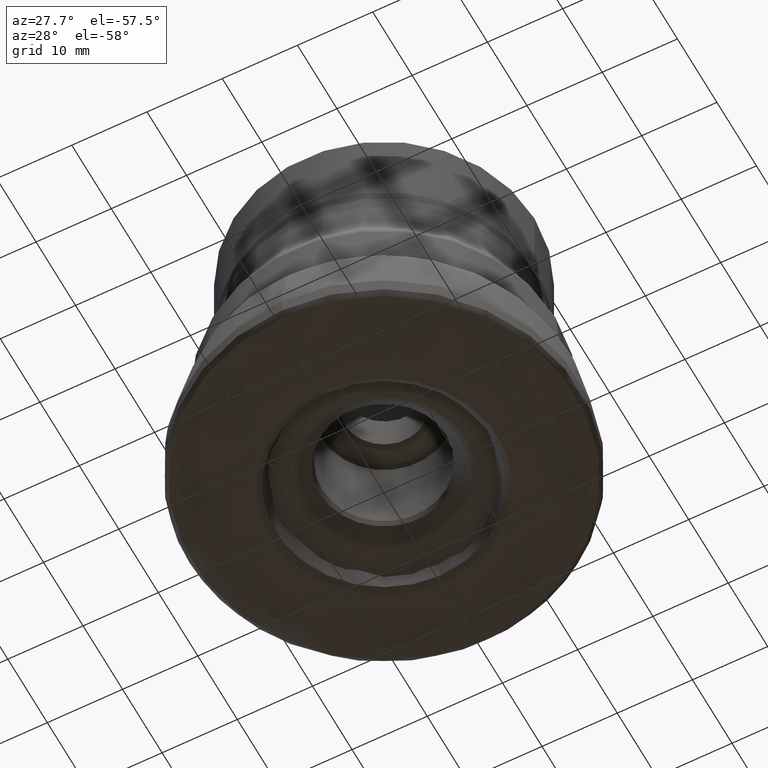
[diagram: clean part render]
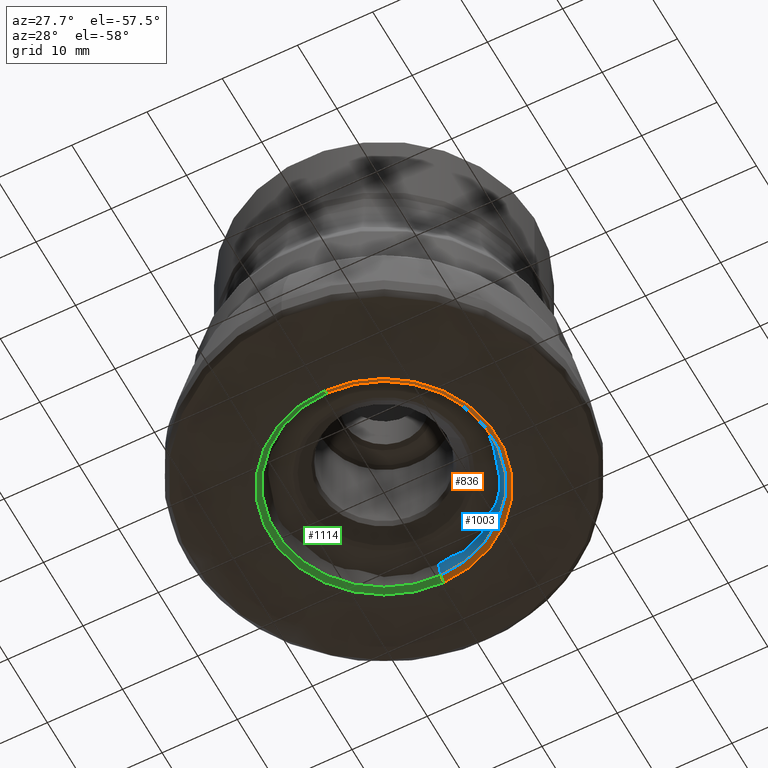
[diagram: same view with three faces highlighted in distinct colors, each labeled with its STEP entity id]
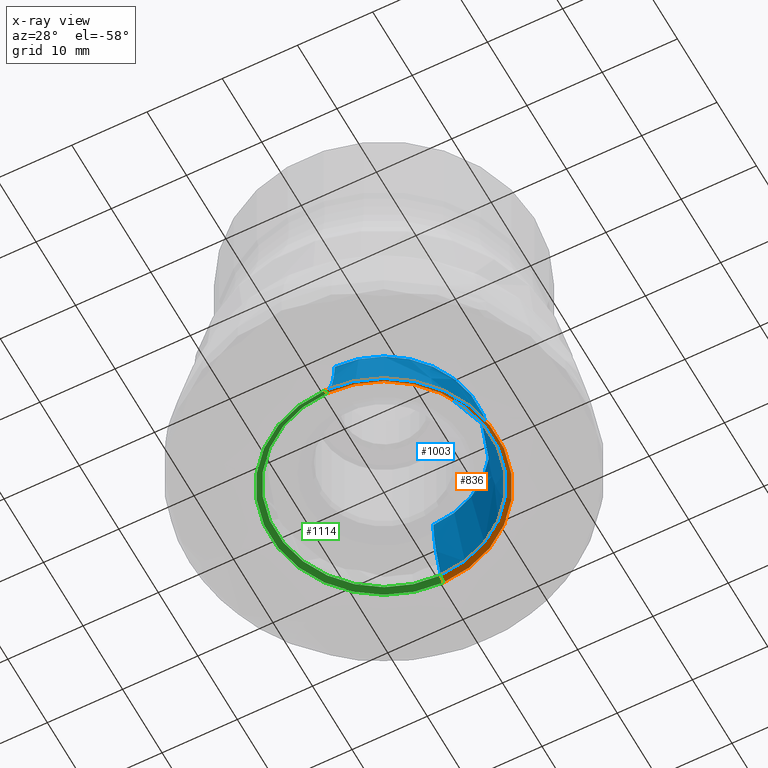
[diagram: x-ray of the same camera — body ghosted, the three highlighted faces saturated]
A machine part, auxiliary view with three faces highlighted in distinct colors.
The next image is the same camera in x-ray (body ghosted, the three faces saturated) — at least one of them is partly hidden behind the body in this view.
Their STEP definitions:

[orange] entity #836 — the highlighted face is a freeform B-spline surface patch.
#10 = CARTESIAN_POINT ( 'NONE',  ( -1.042499677766432100E-013, 14.92918873958315000, -0.03902564459517193100 ) ) ;
#40 = CARTESIAN_POINT ( 'NONE',  ( 30.08653499428197600, -15.04326749714087400, -0.01516185925162929400 ) ) ;
#47 = CARTESIAN_POINT ( 'NONE',  ( 29.85837747916650300, -14.92918873958313600, -0.03902564459517565700 ) ) ;
#84 = CARTESIAN_POINT ( 'NONE',  ( -1.009792405778060700E-013, 14.46080198888654200, -0.3805445099613945500 ) ) ;
#112 = CARTESIAN_POINT ( 'NONE',  ( 0.0000000000000000000, -15.10457269067515500, -0.009049119674118555700 ) ) ;
#148 = CARTESIAN_POINT ( 'NONE',  ( -1.006144611334019600E-013, 14.40856349625221400, -0.4618107524047522200 ) ) ;
#157 = CARTESIAN_POINT ( 'NONE',  ( 6.398687578125103500E-015, -14.40856349625221400, -0.4618107524047557800 ) ) ;
#163 = CARTESIAN_POINT ( 'NONE',  ( 0.0000000000000000000, 14.36854972817481800, -0.5444694449708505900 ) ) ;
#187 = CARTESIAN_POINT ( 'NONE',  ( 0.0000000000000000000, -14.36854972817301000, -0.5444694449700908700 ) ) ;
#217 = CARTESIAN_POINT ( 'NONE',  ( 29.35395528544956900, 14.67697764272494800, -0.1651292542302178800 ) ) ;
#290 = EDGE_LOOP ( 'NONE', ( #2877, #1912, #391, #1502 ) ) ;
#330 = CARTESIAN_POINT ( 'NONE',  ( 1.032906379047621300E-013, -14.79180724176323900, -0.09869209236681944500 ) ) ;
#352 = AXIS2_PLACEMENT_3D ( 'NONE', #1393, #826, #2251 ) ;
#383 = CARTESIAN_POINT ( 'NONE',  ( 0.0000000000000000000, 15.10457269067515000, -0.009049119674117905200 ) ) ;
#391 = ORIENTED_EDGE ( 'NONE', *, *, #1284, .T. ) ;
#428 = CARTESIAN_POINT ( 'NONE',  ( 0.0000000000000000000, 14.36854972817481800, -0.5444694449708505900 ) ) ;
#503 = CARTESIAN_POINT ( 'NONE',  ( -1.032964622886578500E-013, 14.79264132668743900, -0.09494081174751814500 ) ) ;
#512 = DIRECTION ( 'NONE',  ( -0.0000000000000000000, 1.249000902703301100E-016, -1.000000000000000000 ) ) ;
#518 = CARTESIAN_POINT ( 'NONE',  ( -1.054746673613838400E-013, 15.10457269067515500, -0.009049119674114638700 ) ) ;
#533 = CARTESIAN_POINT ( 'NONE',  ( 1.043219711486361800E-013, -14.93950003227028500, -0.04025504432926829700 ) ) ;
#535 = VERTEX_POINT ( 'NONE', #1260 ) ;
#536 = CARTESIAN_POINT ( 'NONE',  ( 6.629891631063935000E-015, -14.92918873958315000, -0.03902564459517565700 ) ) ;
#570 = CARTESIAN_POINT ( 'NONE',  ( 6.421886129042842500E-015, -14.46080198888654200, -0.3805445099613981600 ) ) ;
#594 =( BOUNDED_SURFACE ( )  B_SPLINE_SURFACE ( 3, 3, ( 
 ( #2473, #1888, #2851, #2438 ),
 ( #764, #1531, #2329, #2674 ),
 ( #1791, #1014, #1831, #157 ),
 ( #84, #1680, #2157, #570 ),
 ( #2524, #2199, #1853, #644 ),
 ( #1704, #1318, #1301, #1263 ),
 ( #1395, #217, #1497, #895 ),
 ( #503, #2645, #2307, #1933 ),
 ( #2532, #757, #47, #536 ),
 ( #1917, #1153, #40, #2584 ),
 ( #518, #1605, #1172, #753 ) ),
 .UNSPECIFIED., .F., .F., .T. ) 
 B_SPLINE_SURFACE_WITH_KNOTS ( ( 4, 1, 1, 1, 1, 1, 1, 1, 4 ),
 ( 4, 4 ),
 ( 0.0000000000000000000, 0.09804422904334635100, 0.1971504781988211400, 0.2972880720625902800, 0.3984262260793919300, 0.5005356728046443900, 0.6564170231485220200, 0.8229378715061793600, 1.000000000000000000 ),
 ( 0.0000000000000000000, 1.000000000000000000 ),
 .UNSPECIFIED. ) 
 GEOMETRIC_REPRESENTATION_ITEM ( )  RATIONAL_B_SPLINE_SURFACE ( (
 ( 1.000000000000000000, 0.3333333333333311500, 0.3333333333333311500, 1.000000000000000000),
 ( 1.000000000000000000, 0.3333333333333311500, 0.3333333333333311500, 1.000000000000000000),
 ( 1.000000000000000000, 0.3333333333333311500, 0.3333333333333311500, 1.000000000000000000),
 ( 1.000000000000000000, 0.3333333333333311500, 0.3333333333333311500, 1.000000000000000000),
 ( 1.000000000000000000, 0.3333333333333311500, 0.3333333333333311500, 1.000000000000000000),
 ( 1.000000000000000000, 0.3333333333333311500, 0.3333333333333311500, 1.000000000000000000),
 ( 1.000000000000000000, 0.3333333333333311500, 0.3333333333333311500, 1.000000000000000000),
 ( 1.000000000000000000, 0.3333333333333311500, 0.3333333333333311500, 1.000000000000000000),
 ( 1.000000000000000000, 0.3333333333333311500, 0.3333333333333311500, 1.000000000000000000),
 ( 1.000000000000000000, 0.3333333333333311500, 0.3333333333333311500, 1.000000000000000000),
 ( 1.000000000000000000, 0.3333333333333311500, 0.3333333333333311500, 1.000000000000000000) ) ) 
 REPRESENTATION_ITEM ( '' )  SURFACE ( )  );
#644 = CARTESIAN_POINT ( 'NONE',  ( 6.448366570173136200E-015, -14.52043064129006200, -0.3059033703060211100 ) ) ;
#753 = CARTESIAN_POINT ( 'NONE',  ( 6.707777751324756900E-015, -15.10457269067515500, -0.009049119674118411700 ) ) ;
#757 = CARTESIAN_POINT ( 'NONE',  ( 29.85837747916639600, 14.92918873958335800, -0.03902564459517193100 ) ) ;
#764 = CARTESIAN_POINT ( 'NONE',  ( -1.004210749979214400E-013, 14.38086950096587600, -0.5167070187702137400 ) ) ;
#780 = VERTEX_POINT ( 'NONE', #1683 ) ;
#803 = CARTESIAN_POINT ( 'NONE',  ( -1.009792405778060700E-013, 14.46080198888654200, -0.3805445099613945500 ) ) ;
#814 = CIRCLE ( 'NONE', #352, 14.36854972817301000 ) ;
#826 = DIRECTION ( 'NONE',  ( -0.0000000000000000000, 1.249000902703301100E-016, -1.000000000000000000 ) ) ;
#836 = ADVANCED_FACE ( 'NONE', ( #2579 ), #594, .F. ) ;
#847 = EDGE_CURVE ( 'NONE', #535, #2902, #2352, .T. ) ;
#895 = CARTESIAN_POINT ( 'NONE',  ( 6.517887404344665200E-015, -14.67697764272474000, -0.1651292542302215400 ) ) ;
#938 = EDGE_CURVE ( 'NONE', #780, #535, #2257, .T. ) ;
#1014 = CARTESIAN_POINT ( 'NONE',  ( 28.81712699250451900, 14.40856349625241600, -0.4618107524047521100 ) ) ;
#1065 = B_SPLINE_CURVE_WITH_KNOTS ( 'NONE', 3,
 ( #383, #1288, #10, #1228, #2871, #2428, #1105, #803, #148, #1913, #163 ),
 .UNSPECIFIED., .F., .F.,
 ( 4, 1, 1, 1, 1, 1, 1, 1, 4 ),
 ( 0.0000000000000000000, 0.1770621284938206400, 0.3435829768514779800, 0.4994643271953556100, 0.6015737739206080700, 0.7027119279374096600, 0.8028495218011788600, 0.9019557709566536900, 1.000000000000000000 ),
 .UNSPECIFIED. ) ;
#1105 = CARTESIAN_POINT ( 'NONE',  ( -1.013956252320605600E-013, 14.52043064129006200, -0.3059033703060174400 ) ) ;
#1153 = CARTESIAN_POINT ( 'NONE',  ( 30.08653499428187700, 15.04326749714109800, -0.01516185925162553600 ) ) ;
#1172 = CARTESIAN_POINT ( 'NONE',  ( 30.20914538135052000, -15.10457269067514300, -0.009049119674118411700 ) ) ;
#1228 = CARTESIAN_POINT ( 'NONE',  ( -1.032964622886578500E-013, 14.79264132668743900, -0.09494081174751814500 ) ) ;
#1239 = CARTESIAN_POINT ( 'NONE',  ( 1.008260471785305200E-013, -14.43886382218760500, -0.4070677526653357400 ) ) ;
#1243 = CARTESIAN_POINT ( 'NONE',  ( 0.0000000000000000000, 1.130235864164192300E-018, -0.009049119674116670000 ) ) ;
#1260 = CARTESIAN_POINT ( 'NONE',  ( 0.0000000000000000000, -15.10457269067515500, -0.009049119674118555700 ) ) ;
#1263 = CARTESIAN_POINT ( 'NONE',  ( 6.478557621196420100E-015, -14.58841484435926200, -0.2373603585344141500 ) ) ;
#1284 = EDGE_CURVE ( 'NONE', #2655, #2902, #814, .T. ) ;
#1288 = CARTESIAN_POINT ( 'NONE',  ( -1.050465754829857300E-013, 15.04326749714088900, -0.01516185925162553600 ) ) ;
#1301 = CARTESIAN_POINT ( 'NONE',  ( 29.17682968871872600, -14.58841484435925100, -0.2373603585344141200 ) ) ;
#1315 = DIRECTION ( 'NONE',  ( 0.0000000000000000000, 1.000000000000000000, 1.249415951798253800E-016 ) ) ;
#1318 = CARTESIAN_POINT ( 'NONE',  ( 29.17682968871862000, 14.58841484435946600, -0.2373603585344105100 ) ) ;
#1393 = CARTESIAN_POINT ( 'NONE',  ( 0.0000000000000000000, 6.800428282620066600E-017, -0.5444694449700890900 ) ) ;
#1395 = CARTESIAN_POINT ( 'NONE',  ( -1.024887871003826200E-013, 14.67697764272474000, -0.1651292542302178800 ) ) ;
#1494 = CARTESIAN_POINT ( 'NONE',  ( 1.015373107535964800E-013, -14.54072081439791100, -0.2800077873747168200 ) ) ;
#1497 = CARTESIAN_POINT ( 'NONE',  ( 29.35395528544968300, -14.67697764272472600, -0.1651292542302215400 ) ) ;
#1502 = ORIENTED_EDGE ( 'NONE', *, *, #847, .F. ) ;
#1531 = CARTESIAN_POINT ( 'NONE',  ( 28.76173900193184400, 14.38086950096607800, -0.5167070187702137400 ) ) ;
#1605 = CARTESIAN_POINT ( 'NONE',  ( 30.20914538135041000, 15.10457269067537000, -0.009049119674114636900 ) ) ;
#1680 = CARTESIAN_POINT ( 'NONE',  ( 28.92160397777318100, 14.46080198888674300, -0.3805445099613944900 ) ) ;
#1683 = CARTESIAN_POINT ( 'NONE',  ( 0.0000000000000000000, 15.10457269067515000, -0.009049119674117905200 ) ) ;
#1704 = CARTESIAN_POINT ( 'NONE',  ( -1.018703563847650200E-013, 14.58841484435926200, -0.2373603585344105100 ) ) ;
#1767 = CARTESIAN_POINT ( 'NONE',  ( 1.048375857282247100E-013, -15.01333897476329900, -0.02141896059748061100 ) ) ;
#1791 = CARTESIAN_POINT ( 'NONE',  ( -1.006144611334019600E-013, 14.40856349625221400, -0.4618107524047522200 ) ) ;
#1831 = CARTESIAN_POINT ( 'NONE',  ( 28.81712699250462600, -14.40856349625220300, -0.4618107524047556600 ) ) ;
#1853 = CARTESIAN_POINT ( 'NONE',  ( 29.04086128258032700, -14.52043064129005100, -0.3059033703060211100 ) ) ;
#1888 = CARTESIAN_POINT ( 'NONE',  ( 28.73709945634611200, 14.36854972817321000, -0.5444694449700872000 ) ) ;
#1912 = ORIENTED_EDGE ( 'NONE', *, *, #2281, .T. ) ;
#1913 = CARTESIAN_POINT ( 'NONE',  ( -1.004210749979214400E-013, 14.38086950096587600, -0.5167070187702137400 ) ) ;
#1917 = CARTESIAN_POINT ( 'NONE',  ( -1.050465754829857300E-013, 15.04326749714088900, -0.01516185925162553600 ) ) ;
#1933 = CARTESIAN_POINT ( 'NONE',  ( 6.569252398364011700E-015, -14.79264132668743900, -0.09494081174752185000 ) ) ;
#2157 = CARTESIAN_POINT ( 'NONE',  ( 28.92160397777328700, -14.46080198888653000, -0.3805445099613981600 ) ) ;
#2191 = CARTESIAN_POINT ( 'NONE',  ( 1.004788164322562600E-013, -14.38913840300645800, -0.4980731700365222400 ) ) ;
#2199 = CARTESIAN_POINT ( 'NONE',  ( 29.04086128258021300, 14.52043064129026500, -0.3059033703060175000 ) ) ;
#2243 = CARTESIAN_POINT ( 'NONE',  ( 1.028287687121336900E-013, -14.72566494458265400, -0.1354715850022043000 ) ) ;
#2251 = DIRECTION ( 'NONE',  ( 0.0000000000000000000, 1.000000000000000000, 1.282762511244561800E-016 ) ) ;
#2257 = CIRCLE ( 'NONE', #2280, 15.10457269067515500 ) ;
#2280 = AXIS2_PLACEMENT_3D ( 'NONE', #1243, #512, #1315 ) ;
#2281 = EDGE_CURVE ( 'NONE', #780, #2655, #1065, .T. ) ;
#2307 = CARTESIAN_POINT ( 'NONE',  ( 29.58528265337508500, -14.79264132668742500, -0.09494081174752183600 ) ) ;
#2329 = CARTESIAN_POINT ( 'NONE',  ( 28.76173900193195000, -14.38086950096586500, -0.5167070187702173000 ) ) ;
#2352 = B_SPLINE_CURVE_WITH_KNOTS ( 'NONE', 3,
 ( #112, #2512, #1767, #533, #2819, #330, #2243, #2358, #1494, #1239, #2191, #187 ),
 .UNSPECIFIED., .F., .F.,
 ( 4, 1, 1, 1, 1, 1, 1, 1, 1, 4 ),
 ( 0.0000000000000000000, 0.08994243268901183600, 0.1772489537273123600, 0.2619121842006608700, 0.3439213812616427300, 0.4232634466887406600, 0.4999238900297021100, 0.6694072337605265800, 0.8361464291666627100, 1.000000000000000000 ),
 .UNSPECIFIED. ) ;
#2358 = CARTESIAN_POINT ( 'NONE',  ( 1.022279601560946100E-013, -14.63962573976792200, -0.1929845399348353300 ) ) ;
#2398 = CARTESIAN_POINT ( 'NONE',  ( 0.0000000000000000000, -14.36854972817301000, -0.5444694449700908700 ) ) ;
#2428 = CARTESIAN_POINT ( 'NONE',  ( -1.018703563847650200E-013, 14.58841484435926200, -0.2373603585344105100 ) ) ;
#2438 = CARTESIAN_POINT ( 'NONE',  ( 6.380917895475681500E-015, -14.36854972817301000, -0.5444694449700908700 ) ) ;
#2473 = CARTESIAN_POINT ( 'NONE',  ( -1.003350464843112700E-013, 14.36854972817301000, -0.5444694449700873100 ) ) ;
#2512 = CARTESIAN_POINT ( 'NONE',  ( 1.052572045531680900E-013, -15.07343077881722200, -0.01215427906044528100 ) ) ;
#2524 = CARTESIAN_POINT ( 'NONE',  ( -1.013956252320605600E-013, 14.52043064129006200, -0.3059033703060174400 ) ) ;
#2532 = CARTESIAN_POINT ( 'NONE',  ( -1.042499677766432100E-013, 14.92918873958315000, -0.03902564459517193100 ) ) ;
#2579 = FACE_OUTER_BOUND ( 'NONE', #290, .T. ) ;
#2584 = CARTESIAN_POINT ( 'NONE',  ( 6.680552776368423900E-015, -15.04326749714088900, -0.01516185925162929400 ) ) ;
#2645 = CARTESIAN_POINT ( 'NONE',  ( 29.58528265337497500, 14.79264132668764700, -0.09494081174751814500 ) ) ;
#2655 = VERTEX_POINT ( 'NONE', #428 ) ;
#2674 = CARTESIAN_POINT ( 'NONE',  ( 6.386388973640811000E-015, -14.38086950096587600, -0.5167070187702173000 ) ) ;
#2819 = CARTESIAN_POINT ( 'NONE',  ( 1.037889735298256900E-013, -14.86317173962257200, -0.06660697165064563600 ) ) ;
#2851 = CARTESIAN_POINT ( 'NONE',  ( 28.73709945634621100, -14.36854972817299700, -0.5444694449700908700 ) ) ;
#2871 = CARTESIAN_POINT ( 'NONE',  ( -1.024887871003826200E-013, 14.67697764272474000, -0.1651292542302178800 ) ) ;
#2877 = ORIENTED_EDGE ( 'NONE', *, *, #938, .F. ) ;
#2902 = VERTEX_POINT ( 'NONE', #2398 ) ;

[blue] entity #1003 — the highlighted face is a freeform B-spline surface patch.
#13 = CARTESIAN_POINT ( 'NONE',  ( 8.786503598711360300E-014, -12.58277325008226700, -7.437802694263001300 ) ) ;
#14 = CARTESIAN_POINT ( 'NONE',  ( 6.352866689112245900E-015, -14.30538402691017200, -0.6959199203922705700 ) ) ;
#65 = CARTESIAN_POINT ( 'NONE',  ( 26.05202355366449000, -13.02601177683214000, -4.765616645691871200 ) ) ;
#71 =( BOUNDED_SURFACE ( )  B_SPLINE_SURFACE ( 3, 3, ( 
 ( #1679, #549, #2145, #1246 ),
 ( #1716, #291, #1490, #121 ),
 ( #2545, #252, #1271, #273 ),
 ( #2347, #2313, #97, #2095 ),
 ( #749, #783, #2767, #2068 ),
 ( #2369, #840, #2756, #2105 ),
 ( #2587, #1018, #65, #1252 ),
 ( #577, #2379, #1112, #1753 ),
 ( #1347, #1997, #1990, #896 ),
 ( #1122, #1560, #883, #218 ),
 ( #719, #951, #1821, #2043 ),
 ( #2270, #471, #680, #1175 ),
 ( #2262, #1598, #2012, #712 ),
 ( #462, #2493, #434, #212 ),
 ( #2529, #1597, #2295, #1414 ),
 ( #1400, #1193, #940, #14 ),
 ( #2066, #1419, #1448, #1644 ) ),
 .UNSPECIFIED., .F., .F., .T. ) 
 B_SPLINE_SURFACE_WITH_KNOTS ( ( 4, 1, 1, 1, 1, 1, 1, 1, 1, 1, 1, 1, 1, 1, 4 ),
 ( 4, 4 ),
 ( 0.0000000000000000000, 0.1045142090820272400, 0.2067738112339314600, 0.3067767506506128300, 0.4045200103118918900, 0.4999998772958724700, 0.5548730621963671200, 0.6099180105831583100, 0.6651343030257468300, 0.7205214600016418600, 0.7760789479359079300, 0.8318061854180325300, 0.8877025496231041300, 0.9437673829638534300, 1.000000000000000000 ),
 ( 0.0000000000000000000, 1.000000000000000000 ),
 .UNSPECIFIED. ) 
 GEOMETRIC_REPRESENTATION_ITEM ( )  RATIONAL_B_SPLINE_SURFACE ( (
 ( 1.000000000000000000, 0.3333333333333311500, 0.3333333333333311500, 1.000000000000000000),
 ( 1.000000000000000000, 0.3333333333333311500, 0.3333333333333311500, 1.000000000000000000),
 ( 1.000000000000000000, 0.3333333333333311500, 0.3333333333333311500, 1.000000000000000000),
 ( 1.000000000000000000, 0.3333333333333311500, 0.3333333333333311500, 1.000000000000000000),
 ( 1.000000000000000000, 0.3333333333333311500, 0.3333333333333311500, 1.000000000000000000),
 ( 1.000000000000000000, 0.3333333333333311500, 0.3333333333333311500, 1.000000000000000000),
 ( 1.000000000000000000, 0.3333333333333311500, 0.3333333333333311500, 1.000000000000000000),
 ( 1.000000000000000000, 0.3333333333333311500, 0.3333333333333311500, 1.000000000000000000),
 ( 1.000000000000000000, 0.3333333333333311500, 0.3333333333333311500, 1.000000000000000000),
 ( 1.000000000000000000, 0.3333333333333311500, 0.3333333333333311500, 1.000000000000000000),
 ( 1.000000000000000000, 0.3333333333333311500, 0.3333333333333311500, 1.000000000000000000),
 ( 1.000000000000000000, 0.3333333333333311500, 0.3333333333333311500, 1.000000000000000000),
 ( 1.000000000000000000, 0.3333333333333311500, 0.3333333333333311500, 1.000000000000000000),
 ( 1.000000000000000000, 0.3333333333333311500, 0.3333333333333311500, 1.000000000000000000),
 ( 1.000000000000000000, 0.3333333333333311500, 0.3333333333333311500, 1.000000000000000000),
 ( 1.000000000000000000, 0.3333333333333311500, 0.3333333333333311500, 1.000000000000000000),
 ( 1.000000000000000000, 0.3333333333333311500, 0.3333333333333311500, 1.000000000000000000) ) ) 
 REPRESENTATION_ITEM ( '' )  SURFACE ( )  );
#97 = CARTESIAN_POINT ( 'NONE',  ( 25.22607665665019300, -12.61303832832499700, -7.151584082545555000 ) ) ;
#121 = CARTESIAN_POINT ( 'NONE',  ( 5.542581706196324000E-015, -12.48078445334812500, -8.607080345132626300 ) ) ;
#212 = CARTESIAN_POINT ( 'NONE',  ( 6.222268748445332900E-015, -14.01130360844874200, -1.445544445407773900 ) ) ;
#218 = CARTESIAN_POINT ( 'NONE',  ( 5.954793891947537400E-015, -13.40900377642151900, -3.270497761149741200 ) ) ;
#252 = CARTESIAN_POINT ( 'NONE',  ( 25.04805109459686500, 12.52402554729856700, -7.986627668976870700 ) ) ;
#273 = CARTESIAN_POINT ( 'NONE',  ( 5.561784609441748600E-015, -12.52402554729839100, -7.986627668976876900 ) ) ;
#291 = CARTESIAN_POINT ( 'NONE',  ( 24.96156890669632800, 12.48078445334830100, -8.607080345132622800 ) ) ;
#337 = CARTESIAN_POINT ( 'NONE',  ( 9.954207071873242400E-014, -14.25499108520434900, -0.8167455397779073100 ) ) ;
#348 = VERTEX_POINT ( 'NONE', #455 ) ;
#352 = AXIS2_PLACEMENT_3D ( 'NONE', #1393, #826, #2251 ) ;
#397 = EDGE_CURVE ( 'NONE', #348, #1141, #2484, .T. ) ;
#412 = CARTESIAN_POINT ( 'NONE',  ( 9.803095856169205400E-014, -14.03859122359989400, -1.362322407415557300 ) ) ;
#419 = CARTESIAN_POINT ( 'NONE',  ( 8.926210950214993500E-014, -12.78284212908409900, -6.012435684697202000 ) ) ;
#428 = CARTESIAN_POINT ( 'NONE',  ( 0.0000000000000000000, 14.36854972817481800, -0.5444694449708505900 ) ) ;
#434 = CARTESIAN_POINT ( 'NONE',  ( 28.02260721689767900, -14.01130360844873100, -1.445544445407773900 ) ) ;
#455 = CARTESIAN_POINT ( 'NONE',  ( 0.0000000000000000000, 12.46489116803060400, -8.924536208518889100 ) ) ;
#458 = CARTESIAN_POINT ( 'NONE',  ( -8.745480297117400900E-014, 12.52402554729839300, -7.986627668976873400 ) ) ;
#462 = CARTESIAN_POINT ( 'NONE',  ( -9.784041016352847200E-014, 14.01130360844874200, -1.445544445407770600 ) ) ;
#471 = CARTESIAN_POINT ( 'NONE',  ( 27.38360817588646500, 13.69180408794337800, -2.355050033258913300 ) ) ;
#549 = CARTESIAN_POINT ( 'NONE',  ( 24.92978233606645900, 12.46489116803336600, -8.924536208518910400 ) ) ;
#562 = AXIS2_PLACEMENT_3D ( 'NONE', #1750, #1802, #2037 ) ;
#577 = CARTESIAN_POINT ( 'NONE',  ( -9.191454785681196200E-014, 13.16268639821327500, -4.190321970355079800 ) ) ;
#621 = ORIENTED_EDGE ( 'NONE', *, *, #397, .T. ) ;
#668 = CARTESIAN_POINT ( 'NONE',  ( -9.274278877179353400E-014, 13.28129521129317100, -3.729956840200123700 ) ) ;
#680 = CARTESIAN_POINT ( 'NONE',  ( 27.38360817588656500, -13.69180408794317400, -2.355050033258916400 ) ) ;
#712 = CARTESIAN_POINT ( 'NONE',  ( 6.149254097556953300E-015, -13.84688923118199900, -1.899427871446474300 ) ) ;
#719 = CARTESIAN_POINT ( 'NONE',  ( -9.459001729968598000E-014, 13.54582885025921600, -2.812129783151994000 ) ) ;
#722 = B_SPLINE_CURVE_WITH_KNOTS ( 'NONE', 3,
 ( #1422, #1418, #728, #2327, #2538, #1177, #2205, #924, #668, #2372, #987, #1861, #2759, #2771, #458, #1354, #1741 ),
 .UNSPECIFIED., .F., .F.,
 ( 4, 1, 1, 1, 1, 1, 1, 1, 1, 1, 1, 1, 1, 1, 4 ),
 ( 0.0000000000000000000, 0.05623261703614657000, 0.1122974503768958700, 0.1681938145819674700, 0.2239210520640920700, 0.2794785399983581400, 0.3348656969742531700, 0.3900819894168416900, 0.4451269378036328800, 0.5000001227041275300, 0.5954799896881081100, 0.6932232493493871700, 0.7932261887660685400, 0.8954857909179727600, 1.000000000000000000 ),
 .UNSPECIFIED. ) ;
#728 = CARTESIAN_POINT ( 'NONE',  ( -9.903496965554465300E-014, 14.18237132671585100, -0.9991413871548811000 ) ) ;
#749 = CARTESIAN_POINT ( 'NONE',  ( -8.891256417732311000E-014, 12.73278524908046400, -6.296170749800646500 ) ) ;
#783 = CARTESIAN_POINT ( 'NONE',  ( 25.46557049816101100, 12.73278524908064200, -6.296170749800645600 ) ) ;
#814 = CIRCLE ( 'NONE', #352, 14.36854972817301000 ) ;
#826 = DIRECTION ( 'NONE',  ( -0.0000000000000000000, 1.249000902703301100E-016, -1.000000000000000000 ) ) ;
#840 = CARTESIAN_POINT ( 'NONE',  ( 25.75800384733792800, 12.87900192366910600, -5.464650349338604100 ) ) ;
#883 = CARTESIAN_POINT ( 'NONE',  ( 26.81800755284322700, -13.40900377642150900, -3.270497761149741200 ) ) ;
#896 = CARTESIAN_POINT ( 'NONE',  ( 5.898079896168597800E-015, -13.28129521129317000, -3.729956840200127300 ) ) ;
#924 = CARTESIAN_POINT ( 'NONE',  ( -9.363457291570568500E-014, 13.40900377642151900, -3.270497761149737700 ) ) ;
#940 = CARTESIAN_POINT ( 'NONE',  ( 28.61076805382053900, -14.30538402691015800, -0.6959199203922705700 ) ) ;
#951 = CARTESIAN_POINT ( 'NONE',  ( 27.09165770051852100, 13.54582885025940400, -2.812129783151994500 ) ) ;
#987 = CARTESIAN_POINT ( 'NONE',  ( -9.096015407672069500E-014, 13.02601177683215500, -4.765616645691867600 ) ) ;
#1003 = ADVANCED_FACE ( 'NONE', ( #1348 ), #71, .F. ) ;
#1018 = CARTESIAN_POINT ( 'NONE',  ( 26.05202355366439400, 13.02601177683233800, -4.765616645691867600 ) ) ;
#1112 = CARTESIAN_POINT ( 'NONE',  ( 26.32537279642673100, -13.16268639821326000, -4.190321970355083400 ) ) ;
#1122 = CARTESIAN_POINT ( 'NONE',  ( -9.363457291570568500E-014, 13.40900377642151900, -3.270497761149737700 ) ) ;
#1141 = VERTEX_POINT ( 'NONE', #1706 ) ;
#1175 = CARTESIAN_POINT ( 'NONE',  ( 6.080382458836546900E-015, -13.69180408794318800, -2.355050033258916400 ) ) ;
#1177 = CARTESIAN_POINT ( 'NONE',  ( -9.560935693629952400E-014, 13.69180408794318800, -2.355050033258912800 ) ) ;
#1193 = CARTESIAN_POINT ( 'NONE',  ( 28.61076805382042900, 14.30538402691037100, -0.6959199203922670200 ) ) ;
#1207 = CARTESIAN_POINT ( 'NONE',  ( 9.134713199639515400E-014, -13.08142921747106900, -4.522172780976500700 ) ) ;
#1246 = CARTESIAN_POINT ( 'NONE',  ( 5.535523669678884500E-015, -12.46489116803319200, -8.924536208518913900 ) ) ;
#1252 = CARTESIAN_POINT ( 'NONE',  ( 5.784711277470994600E-015, -13.02601177683215300, -4.765616645691871200 ) ) ;
#1271 = CARTESIAN_POINT ( 'NONE',  ( 25.04805109459696100, -12.52402554729838100, -7.986627668976876000 ) ) ;
#1284 = EDGE_CURVE ( 'NONE', #2655, #2902, #814, .T. ) ;
#1306 = CARTESIAN_POINT ( 'NONE',  ( 8.710382446033164800E-014, -12.47376342690014400, -8.747319821662058500 ) ) ;
#1347 = CARTESIAN_POINT ( 'NONE',  ( -9.274278877179353400E-014, 13.28129521129317100, -3.729956840200123700 ) ) ;
#1348 = FACE_OUTER_BOUND ( 'NONE', #2691, .T. ) ;
#1354 = CARTESIAN_POINT ( 'NONE',  ( -8.715285202597695400E-014, 12.48078445334812700, -8.607080345132622800 ) ) ;
#1382 = CARTESIAN_POINT ( 'NONE',  ( 0.0000000000000000000, -12.46489116803319200, -8.924536208518913900 ) ) ;
#1393 = CARTESIAN_POINT ( 'NONE',  ( 0.0000000000000000000, 6.800428282620066600E-017, -0.5444694449700890900 ) ) ;
#1400 = CARTESIAN_POINT ( 'NONE',  ( -9.989396274988300800E-014, 14.30538402691017200, -0.6959199203922670200 ) ) ;
#1414 = CARTESIAN_POINT ( 'NONE',  ( 6.298238076281438200E-015, -14.18237132671585100, -0.9991413871548845400 ) ) ;
#1418 = CARTESIAN_POINT ( 'NONE',  ( -9.989396274988300800E-014, 14.30538402691017200, -0.6959199203922670200 ) ) ;
#1419 = CARTESIAN_POINT ( 'NONE',  ( 28.73709945634973900, 14.36854972817502800, -0.5444694449708473700 ) ) ;
#1422 = CARTESIAN_POINT ( 'NONE',  ( 0.0000000000000000000, 14.36854972817481800, -0.5444694449708505900 ) ) ;
#1448 = CARTESIAN_POINT ( 'NONE',  ( 28.73709945634984600, -14.36854972817481400, -0.5444694449708509200 ) ) ;
#1490 = CARTESIAN_POINT ( 'NONE',  ( 24.96156890669643100, -12.48078445334811600, -8.607080345132626300 ) ) ;
#1560 = CARTESIAN_POINT ( 'NONE',  ( 26.81800755284312000, 13.40900377642170600, -3.270497761149737700 ) ) ;
#1580 = CARTESIAN_POINT ( 'NONE',  ( 9.255147897735037700E-014, -13.25389855986117900, -3.820043597131606900 ) ) ;
#1585 = EDGE_CURVE ( 'NONE', #2902, #1141, #1701, .T. ) ;
#1597 = CARTESIAN_POINT ( 'NONE',  ( 28.36474265343179000, 14.18237132671605000, -0.9991413871548811000 ) ) ;
#1598 = CARTESIAN_POINT ( 'NONE',  ( 27.69377846236408700, 13.84688923118218900, -1.899427871446471000 ) ) ;
#1644 = CARTESIAN_POINT ( 'NONE',  ( 6.380917895476482200E-015, -14.36854972817482500, -0.5444694449708509200 ) ) ;
#1679 = CARTESIAN_POINT ( 'NONE',  ( -8.704186980779696100E-014, 12.46489116803319400, -8.924536208518910400 ) ) ;
#1701 = B_SPLINE_CURVE_WITH_KNOTS ( 'NONE', 3,
 ( #2465, #337, #412, #2294, #2773, #1580, #1207, #2697, #2426, #419, #2527, #1728, #13, #2685, #1904, #1306, #1382 ),
 .UNSPECIFIED., .F., .F.,
 ( 4, 1, 1, 1, 1, 1, 1, 1, 1, 1, 1, 1, 1, 1, 4 ),
 ( 0.0000000000000000000, 0.1010944160114388700, 0.2016434909559525800, 0.3016434359834481200, 0.4010908686694899500, 0.4999829345067593500, 0.5527492380613623400, 0.6062147417369843100, 0.6603787530487190700, 0.7152406234449236700, 0.7707997622791831200, 0.8270556507795267000, 0.8840078560713473500, 0.9416560453124034300, 1.000000000000000000 ),
 .UNSPECIFIED. ) ;
#1706 = CARTESIAN_POINT ( 'NONE',  ( 0.0000000000000000000, -12.46489116803319200, -8.924536208518913900 ) ) ;
#1716 = CARTESIAN_POINT ( 'NONE',  ( -8.715285202597695400E-014, 12.48078445334812700, -8.607080345132622800 ) ) ;
#1728 = CARTESIAN_POINT ( 'NONE',  ( 8.827228471504077000E-014, -12.64109358583724700, -6.955454208796407300 ) ) ;
#1741 = CARTESIAN_POINT ( 'NONE',  ( 0.0000000000000000000, 12.46489116803060400, -8.924536208518889100 ) ) ;
#1750 = CARTESIAN_POINT ( 'NONE',  ( 0.0000000000000000000, 1.114675378064841800E-015, -8.924536208518912200 ) ) ;
#1753 = CARTESIAN_POINT ( 'NONE',  ( 5.845407002086690300E-015, -13.16268639821327300, -4.190321970355083400 ) ) ;
#1802 = DIRECTION ( 'NONE',  ( -0.0000000000000000000, 1.249000902703301100E-016, -1.000000000000000000 ) ) ;
#1821 = CARTESIAN_POINT ( 'NONE',  ( 27.09165770051861700, -13.54582885025920500, -2.812129783151997100 ) ) ;
#1861 = CARTESIAN_POINT ( 'NONE',  ( -8.993358975882972100E-014, 12.87900192366892500, -5.464650349338604100 ) ) ;
#1887 = ORIENTED_EDGE ( 'NONE', *, *, #2621, .T. ) ;
#1904 = CARTESIAN_POINT ( 'NONE',  ( 8.725279250902851300E-014, -12.49509649934701200, -8.397383727496736200 ) ) ;
#1990 = CARTESIAN_POINT ( 'NONE',  ( 26.56259042258652400, -13.28129521129315700, -3.729956840200127300 ) ) ;
#1997 = CARTESIAN_POINT ( 'NONE',  ( 26.56259042258642100, 13.28129521129335400, -3.729956840200123300 ) ) ;
#2012 = CARTESIAN_POINT ( 'NONE',  ( 27.69377846236418600, -13.84688923118198500, -1.899427871446474300 ) ) ;
#2027 = ORIENTED_EDGE ( 'NONE', *, *, #1585, .F. ) ;
#2037 = DIRECTION ( 'NONE',  ( 0.0000000000000000000, 1.000000000000000000, 1.391687622933755100E-016 ) ) ;
#2043 = CARTESIAN_POINT ( 'NONE',  ( 6.015556430875795100E-015, -13.54582885025921600, -2.812129783151997600 ) ) ;
#2066 = CARTESIAN_POINT ( 'NONE',  ( -1.003350464843239600E-013, 14.36854972817482500, -0.5444694449708473700 ) ) ;
#2068 = CARTESIAN_POINT ( 'NONE',  ( 5.654492540454673800E-015, -12.73278524908046300, -6.296170749800650100 ) ) ;
#2095 = CARTESIAN_POINT ( 'NONE',  ( 5.601314225034422300E-015, -12.61303832832500800, -7.151584082545554100 ) ) ;
#2105 = CARTESIAN_POINT ( 'NONE',  ( 5.719425787939559100E-015, -12.87900192366892300, -5.464650349338607600 ) ) ;
#2145 = CARTESIAN_POINT ( 'NONE',  ( 24.92978233606656200, -12.46489116803318200, -8.924536208518913900 ) ) ;
#2205 = CARTESIAN_POINT ( 'NONE',  ( -9.459001729968598000E-014, 13.54582885025921600, -2.812129783151994000 ) ) ;
#2251 = DIRECTION ( 'NONE',  ( 0.0000000000000000000, 1.000000000000000000, 1.282762511244561800E-016 ) ) ;
#2262 = CARTESIAN_POINT ( 'NONE',  ( -9.669231070339976900E-014, 13.84688923118199900, -1.899427871446470700 ) ) ;
#2270 = CARTESIAN_POINT ( 'NONE',  ( -9.560935693629952400E-014, 13.69180408794318800, -2.355050033258912800 ) ) ;
#2294 = CARTESIAN_POINT ( 'NONE',  ( 9.601699053081655400E-014, -13.75017953878436000, -2.170619615764088900 ) ) ;
#2295 = CARTESIAN_POINT ( 'NONE',  ( 28.36474265343189700, -14.18237132671583800, -0.9991413871548844300 ) ) ;
#2304 = ORIENTED_EDGE ( 'NONE', *, *, #1284, .F. ) ;
#2313 = CARTESIAN_POINT ( 'NONE',  ( 25.22607665665009700, 12.61303832832518900, -7.151584082545550600 ) ) ;
#2327 = CARTESIAN_POINT ( 'NONE',  ( -9.784041016352847200E-014, 14.01130360844874200, -1.445544445407770600 ) ) ;
#2347 = CARTESIAN_POINT ( 'NONE',  ( -8.807637589891991800E-014, 12.61303832832500900, -7.151584082545551400 ) ) ;
#2369 = CARTESIAN_POINT ( 'NONE',  ( -8.993358975882972100E-014, 12.87900192366892500, -5.464650349338604100 ) ) ;
#2372 = CARTESIAN_POINT ( 'NONE',  ( -9.191454785681196200E-014, 13.16268639821327500, -4.190321970355079800 ) ) ;
#2379 = CARTESIAN_POINT ( 'NONE',  ( 26.32537279642663500, 13.16268639821345800, -4.190321970355078900 ) ) ;
#2398 = CARTESIAN_POINT ( 'NONE',  ( 0.0000000000000000000, -14.36854972817301000, -0.5444694449700908700 ) ) ;
#2426 = CARTESIAN_POINT ( 'NONE',  ( 8.983962543428762800E-014, -12.86554569758277100, -5.552016122961726200 ) ) ;
#2465 = CARTESIAN_POINT ( 'NONE',  ( 0.0000000000000000000, -14.36854972817301000, -0.5444694449700908700 ) ) ;
#2484 = CIRCLE ( 'NONE', #562, 12.46489116803319200 ) ;
#2493 = CARTESIAN_POINT ( 'NONE',  ( 28.02260721689757300, 14.01130360844893900, -1.445544445407770600 ) ) ;
#2527 = CARTESIAN_POINT ( 'NONE',  ( 8.873873045550697700E-014, -12.70789127071629200, -6.480287340168168000 ) ) ;
#2529 = CARTESIAN_POINT ( 'NONE',  ( -9.903496965554465300E-014, 14.18237132671585100, -0.9991413871548811000 ) ) ;
#2538 = CARTESIAN_POINT ( 'NONE',  ( -9.669231070339976900E-014, 13.84688923118199900, -1.899427871446470700 ) ) ;
#2545 = CARTESIAN_POINT ( 'NONE',  ( -8.745480297117400900E-014, 12.52402554729839300, -7.986627668976873400 ) ) ;
#2587 = CARTESIAN_POINT ( 'NONE',  ( -9.096015407672069500E-014, 13.02601177683215500, -4.765616645691867600 ) ) ;
#2621 = EDGE_CURVE ( 'NONE', #2655, #348, #722, .T. ) ;
#2655 = VERTEX_POINT ( 'NONE', #428 ) ;
#2685 = CARTESIAN_POINT ( 'NONE',  ( 8.752139592683109700E-014, -12.53356203757205400, -7.927200754911298800 ) ) ;
#2691 = EDGE_LOOP ( 'NONE', ( #2304, #1887, #621, #2027 ) ) ;
#2697 = CARTESIAN_POINT ( 'NONE',  ( 9.046867596630827200E-014, -12.95562931410140800, -5.099132377947338300 ) ) ;
#2756 = CARTESIAN_POINT ( 'NONE',  ( 25.75800384733802100, -12.87900192366891100, -5.464650349338607600 ) ) ;
#2759 = CARTESIAN_POINT ( 'NONE',  ( -8.891256417732311000E-014, 12.73278524908046400, -6.296170749800646500 ) ) ;
#2767 = CARTESIAN_POINT ( 'NONE',  ( 25.46557049816110300, -12.73278524908045000, -6.296170749800650100 ) ) ;
#2771 = CARTESIAN_POINT ( 'NONE',  ( -8.807637589891991800E-014, 12.61303832832500900, -7.151584082545551400 ) ) ;
#2773 = CARTESIAN_POINT ( 'NONE',  ( 9.417909363842869100E-014, -13.48698224313493900, -2.993268204078555900 ) ) ;
#2902 = VERTEX_POINT ( 'NONE', #2398 ) ;

[green] entity #1114 — the highlighted face is a freeform B-spline surface patch.
#10 = CARTESIAN_POINT ( 'NONE',  ( -1.042499677766432100E-013, 14.92918873958315000, -0.03902564459517193100 ) ) ;
#112 = CARTESIAN_POINT ( 'NONE',  ( 0.0000000000000000000, -15.10457269067515500, -0.009049119674118555700 ) ) ;
#131 = CARTESIAN_POINT ( 'NONE',  ( -29.72634347924524100, -14.86317173962278000, -0.06660697165064563600 ) ) ;
#148 = CARTESIAN_POINT ( 'NONE',  ( -1.006144611334019600E-013, 14.40856349625221400, -0.4618107524047522200 ) ) ;
#154 = CARTESIAN_POINT ( 'NONE',  ( -6.457377217116329700E-015, 14.54072081439791100, -0.2800077873747132100 ) ) ;
#163 = CARTESIAN_POINT ( 'NONE',  ( 0.0000000000000000000, 14.36854972817481800, -0.5444694449708505900 ) ) ;
#187 = CARTESIAN_POINT ( 'NONE',  ( 0.0000000000000000000, -14.36854972817301000, -0.5444694449700908700 ) ) ;
#233 = ORIENTED_EDGE ( 'NONE', *, *, #1709, .F. ) ;
#330 = CARTESIAN_POINT ( 'NONE',  ( 1.032906379047621300E-013, -14.79180724176323900, -0.09869209236681944500 ) ) ;
#358 = CARTESIAN_POINT ( 'NONE',  ( 1.037889735298256900E-013, -14.86317173962257200, -0.06660697165064563600 ) ) ;
#381 = CARTESIAN_POINT ( 'NONE',  ( 1.043219711486361800E-013, -14.93950003227028500, -0.04025504432926829700 ) ) ;
#383 = CARTESIAN_POINT ( 'NONE',  ( 0.0000000000000000000, 15.10457269067515000, -0.009049119674117905200 ) ) ;
#418 = CARTESIAN_POINT ( 'NONE',  ( -29.87900006454077200, 14.93950003227027200, -0.04025504432926456400 ) ) ;
#428 = CARTESIAN_POINT ( 'NONE',  ( 0.0000000000000000000, 14.36854972817481800, -0.5444694449708505900 ) ) ;
#435 = CARTESIAN_POINT ( 'NONE',  ( -28.87772764437540500, 14.43886382218759200, -0.4070677526653321800 ) ) ;
#441 = FACE_OUTER_BOUND ( 'NONE', #2666, .T. ) ;
#533 = CARTESIAN_POINT ( 'NONE',  ( 1.043219711486361800E-013, -14.93950003227028500, -0.04025504432926829700 ) ) ;
#535 = VERTEX_POINT ( 'NONE', #1260 ) ;
#553 = CARTESIAN_POINT ( 'NONE',  ( 1.048375857282247100E-013, -15.01333897476329900, -0.02141896059748061100 ) ) ;
#610 = CARTESIAN_POINT ( 'NONE',  ( -29.72634347924534700, 14.86317173962256000, -0.06660697165064191600 ) ) ;
#652 = CARTESIAN_POINT ( 'NONE',  ( -29.87900006454066600, -14.93950003227049300, -0.04025504432926829700 ) ) ;
#662 = CARTESIAN_POINT ( 'NONE',  ( -6.693947964294546400E-015, 15.07343077881722200, -0.01215427906044151500 ) ) ;
#780 = VERTEX_POINT ( 'NONE', #1683 ) ;
#803 = CARTESIAN_POINT ( 'NONE',  ( -1.009792405778060700E-013, 14.46080198888654200, -0.3805445099613945500 ) ) ;
#805 = ORIENTED_EDGE ( 'NONE', *, *, #2443, .T. ) ;
#847 = EDGE_CURVE ( 'NONE', #535, #2902, #2352, .T. ) ;
#859 = CARTESIAN_POINT ( 'NONE',  ( -30.02667794952680300, 15.01333897476328400, -0.02141896059747686000 ) ) ;
#877 = CARTESIAN_POINT ( 'NONE',  ( -6.539508909756480100E-015, 14.72566494458265400, -0.1354715850022006100 ) ) ;
#927 = DIRECTION ( 'NONE',  ( 0.0000000000000000000, 1.000000000000000000, 1.249415951798254300E-016 ) ) ;
#936 = AXIS2_PLACEMENT_3D ( 'NONE', #1789, #2821, #2200 ) ;
#1065 = B_SPLINE_CURVE_WITH_KNOTS ( 'NONE', 3,
 ( #383, #1288, #10, #1228, #2871, #2428, #1105, #803, #148, #1913, #163 ),
 .UNSPECIFIED., .F., .F.,
 ( 4, 1, 1, 1, 1, 1, 1, 1, 4 ),
 ( 0.0000000000000000000, 0.1770621284938206400, 0.3435829768514779800, 0.4994643271953556100, 0.6015737739206080700, 0.7027119279374096600, 0.8028495218011788600, 0.9019557709566536900, 1.000000000000000000 ),
 .UNSPECIFIED. ) ;
#1084 = CARTESIAN_POINT ( 'NONE',  ( -6.568881990249071000E-015, 14.79180724176323900, -0.09869209236681574000 ) ) ;
#1096 = CARTESIAN_POINT ( 'NONE',  ( -29.27925147953594000, -14.63962573976812500, -0.1929845399348353000 ) ) ;
#1105 = CARTESIAN_POINT ( 'NONE',  ( -1.013956252320605600E-013, 14.52043064129006200, -0.3059033703060174400 ) ) ;
#1114 = ADVANCED_FACE ( 'NONE', ( #441 ), #1302, .T. ) ;
#1136 = CARTESIAN_POINT ( 'NONE',  ( -30.14686155763454400, -15.07343077881743600, -0.01215427906044528100 ) ) ;
#1190 = CIRCLE ( 'NONE', #936, 14.36854972817481800 ) ;
#1228 = CARTESIAN_POINT ( 'NONE',  ( -1.032964622886578500E-013, 14.79264132668743900, -0.09494081174751814500 ) ) ;
#1239 = CARTESIAN_POINT ( 'NONE',  ( 1.008260471785305200E-013, -14.43886382218760500, -0.4070677526653357400 ) ) ;
#1260 = CARTESIAN_POINT ( 'NONE',  ( 0.0000000000000000000, -15.10457269067515500, -0.009049119674118555700 ) ) ;
#1272 = ORIENTED_EDGE ( 'NONE', *, *, #2281, .F. ) ;
#1288 = CARTESIAN_POINT ( 'NONE',  ( -1.050465754829857300E-013, 15.04326749714088900, -0.01516185925162553600 ) ) ;
#1302 =( BOUNDED_SURFACE ( )  B_SPLINE_SURFACE ( 3, 3, ( 
 ( #2183, #1777, #1563, #1561 ),
 ( #2687, #1136, #2223, #662 ),
 ( #553, #2455, #859, #1731 ),
 ( #381, #652, #418, #1547 ),
 ( #358, #131, #610, #1309 ),
 ( #2681, #2846, #2891, #1084 ),
 ( #1332, #2417, #2187, #877 ),
 ( #2004, #1096, #1751, #2899 ),
 ( #1986, #1322, #1967, #154 ),
 ( #1342, #1573, #435, #1625 ),
 ( #2903, #2109, #1894, #1459 ),
 ( #2583, #1878, #1651, #1398 ) ),
 .UNSPECIFIED., .F., .F., .T. ) 
 B_SPLINE_SURFACE_WITH_KNOTS ( ( 4, 1, 1, 1, 1, 1, 1, 1, 1, 4 ),
 ( 4, 4 ),
 ( 0.0000000000000000000, 0.08994243268901183600, 0.1772489537273123600, 0.2619121842006608700, 0.3439213812616427300, 0.4232634466887406600, 0.4999238900297021100, 0.6694072337605265800, 0.8361464291666627100, 1.000000000000000000 ),
 ( 0.0000000000000000000, 1.000000000000000000 ),
 .UNSPECIFIED. ) 
 GEOMETRIC_REPRESENTATION_ITEM ( )  RATIONAL_B_SPLINE_SURFACE ( (
 ( 1.000000000000000000, 0.3333333333333311500, 0.3333333333333311500, 1.000000000000000000),
 ( 1.000000000000000000, 0.3333333333333311500, 0.3333333333333311500, 1.000000000000000000),
 ( 1.000000000000000000, 0.3333333333333311500, 0.3333333333333311500, 1.000000000000000000),
 ( 1.000000000000000000, 0.3333333333333311500, 0.3333333333333311500, 1.000000000000000000),
 ( 1.000000000000000000, 0.3333333333333311500, 0.3333333333333311500, 1.000000000000000000),
 ( 1.000000000000000000, 0.3333333333333311500, 0.3333333333333311500, 1.000000000000000000),
 ( 1.000000000000000000, 0.3333333333333311500, 0.3333333333333311500, 1.000000000000000000),
 ( 1.000000000000000000, 0.3333333333333311500, 0.3333333333333311500, 1.000000000000000000),
 ( 1.000000000000000000, 0.3333333333333311500, 0.3333333333333311500, 1.000000000000000000),
 ( 1.000000000000000000, 0.3333333333333311500, 0.3333333333333311500, 1.000000000000000000),
 ( 1.000000000000000000, 0.3333333333333311500, 0.3333333333333311500, 1.000000000000000000),
 ( 1.000000000000000000, 0.3333333333333311500, 0.3333333333333311500, 1.000000000000000000) ) ) 
 REPRESENTATION_ITEM ( '' )  SURFACE ( )  );
#1309 = CARTESIAN_POINT ( 'NONE',  ( -6.600574193714765600E-015, 14.86317173962257200, -0.06660697165064191600 ) ) ;
#1322 = CARTESIAN_POINT ( 'NONE',  ( -29.08144162879591800, -14.54072081439811400, -0.2800077873747168200 ) ) ;
#1332 = CARTESIAN_POINT ( 'NONE',  ( 1.028287687121336900E-013, -14.72566494458265400, -0.1354715850022043000 ) ) ;
#1339 = CIRCLE ( 'NONE', #2115, 15.10457269067515000 ) ;
#1342 = CARTESIAN_POINT ( 'NONE',  ( 1.008260471785305200E-013, -14.43886382218760500, -0.4070677526653357400 ) ) ;
#1398 = CARTESIAN_POINT ( 'NONE',  ( -6.380917895475679900E-015, 14.36854972817300300, -0.5444694449700907500 ) ) ;
#1459 = CARTESIAN_POINT ( 'NONE',  ( -6.390061103814328800E-015, 14.38913840300645800, -0.4980731700365186300 ) ) ;
#1494 = CARTESIAN_POINT ( 'NONE',  ( 1.015373107535964800E-013, -14.54072081439791100, -0.2800077873747168200 ) ) ;
#1547 = CARTESIAN_POINT ( 'NONE',  ( -6.634470764885898900E-015, 14.93950003227028500, -0.04025504432926456400 ) ) ;
#1561 = CARTESIAN_POINT ( 'NONE',  ( -6.707777751324768700E-015, 15.10457269067515000, -0.009049119674117905200 ) ) ;
#1563 = CARTESIAN_POINT ( 'NONE',  ( -30.20914538135051000, 15.10457269067513800, -0.009049119674117905200 ) ) ;
#1573 = CARTESIAN_POINT ( 'NONE',  ( -28.87772764437530200, -14.43886382218780500, -0.4070677526653357400 ) ) ;
#1625 = CARTESIAN_POINT ( 'NONE',  ( -6.412143625927942800E-015, 14.43886382218760500, -0.4070677526653321300 ) ) ;
#1651 = CARTESIAN_POINT ( 'NONE',  ( -28.73709945634620100, 14.36854972817298700, -0.5444694449700907500 ) ) ;
#1683 = CARTESIAN_POINT ( 'NONE',  ( 0.0000000000000000000, 15.10457269067515000, -0.009049119674117905200 ) ) ;
#1692 = ORIENTED_EDGE ( 'NONE', *, *, #847, .T. ) ;
#1709 = EDGE_CURVE ( 'NONE', #535, #780, #1339, .T. ) ;
#1731 = CARTESIAN_POINT ( 'NONE',  ( -6.667261842513776100E-015, 15.01333897476329900, -0.02141896059747686000 ) ) ;
#1751 = CARTESIAN_POINT ( 'NONE',  ( -29.27925147953604000, 14.63962573976790600, -0.1929845399348316900 ) ) ;
#1767 = CARTESIAN_POINT ( 'NONE',  ( 1.048375857282247100E-013, -15.01333897476329900, -0.02141896059748061100 ) ) ;
#1777 = CARTESIAN_POINT ( 'NONE',  ( -30.20914538135040000, -15.10457269067536500, -0.009049119674121678200 ) ) ;
#1789 = CARTESIAN_POINT ( 'NONE',  ( 0.0000000000000000000, 6.800428282629598300E-017, -0.5444694449708522600 ) ) ;
#1839 = CARTESIAN_POINT ( 'NONE',  ( 0.0000000000000000000, 1.130235864164581900E-018, -0.009049119674119790800 ) ) ;
#1878 = CARTESIAN_POINT ( 'NONE',  ( -28.73709945634609000, -14.36854972817320000, -0.5444694449700943100 ) ) ;
#1894 = CARTESIAN_POINT ( 'NONE',  ( -28.77827680601311000, 14.38913840300644500, -0.4980731700365186900 ) ) ;
#1913 = CARTESIAN_POINT ( 'NONE',  ( -1.004210749979214400E-013, 14.38086950096587600, -0.5167070187702137400 ) ) ;
#1967 = CARTESIAN_POINT ( 'NONE',  ( -29.08144162879602500, 14.54072081439790100, -0.2800077873747132100 ) ) ;
#1986 = CARTESIAN_POINT ( 'NONE',  ( 1.015373107535964800E-013, -14.54072081439791100, -0.2800077873747168200 ) ) ;
#2004 = CARTESIAN_POINT ( 'NONE',  ( 1.022279601560946100E-013, -14.63962573976792200, -0.1929845399348353300 ) ) ;
#2109 = CARTESIAN_POINT ( 'NONE',  ( -28.77827680601300700, -14.38913840300665800, -0.4980731700365222900 ) ) ;
#2115 = AXIS2_PLACEMENT_3D ( 'NONE', #1839, #2522, #927 ) ;
#2183 = CARTESIAN_POINT ( 'NONE',  ( 1.054746673613838100E-013, -15.10457269067515000, -0.009049119674121678200 ) ) ;
#2187 = CARTESIAN_POINT ( 'NONE',  ( -29.45132988916551800, 14.72566494458264200, -0.1354715850022006100 ) ) ;
#2191 = CARTESIAN_POINT ( 'NONE',  ( 1.004788164322562600E-013, -14.38913840300645800, -0.4980731700365222400 ) ) ;
#2200 = DIRECTION ( 'NONE',  ( 0.0000000000000000000, 1.000000000000000000, 1.282762511244400400E-016 ) ) ;
#2223 = CARTESIAN_POINT ( 'NONE',  ( -30.14686155763465800, 15.07343077881721200, -0.01215427906044151500 ) ) ;
#2243 = CARTESIAN_POINT ( 'NONE',  ( 1.028287687121336900E-013, -14.72566494458265400, -0.1354715850022043000 ) ) ;
#2281 = EDGE_CURVE ( 'NONE', #780, #2655, #1065, .T. ) ;
#2352 = B_SPLINE_CURVE_WITH_KNOTS ( 'NONE', 3,
 ( #112, #2512, #1767, #533, #2819, #330, #2243, #2358, #1494, #1239, #2191, #187 ),
 .UNSPECIFIED., .F., .F.,
 ( 4, 1, 1, 1, 1, 1, 1, 1, 1, 4 ),
 ( 0.0000000000000000000, 0.08994243268901183600, 0.1772489537273123600, 0.2619121842006608700, 0.3439213812616427300, 0.4232634466887406600, 0.4999238900297021100, 0.6694072337605265800, 0.8361464291666627100, 1.000000000000000000 ),
 .UNSPECIFIED. ) ;
#2358 = CARTESIAN_POINT ( 'NONE',  ( 1.022279601560946100E-013, -14.63962573976792200, -0.1929845399348353300 ) ) ;
#2398 = CARTESIAN_POINT ( 'NONE',  ( 0.0000000000000000000, -14.36854972817301000, -0.5444694449700908700 ) ) ;
#2417 = CARTESIAN_POINT ( 'NONE',  ( -29.45132988916540400, -14.72566494458286200, -0.1354715850022043000 ) ) ;
#2428 = CARTESIAN_POINT ( 'NONE',  ( -1.018703563847650200E-013, 14.58841484435926200, -0.2373603585344105100 ) ) ;
#2443 = EDGE_CURVE ( 'NONE', #2902, #2655, #1190, .T. ) ;
#2455 = CARTESIAN_POINT ( 'NONE',  ( -30.02667794952669700, -15.01333897476350800, -0.02141896059748061100 ) ) ;
#2512 = CARTESIAN_POINT ( 'NONE',  ( 1.052572045531680900E-013, -15.07343077881722200, -0.01215427906044528100 ) ) ;
#2522 = DIRECTION ( 'NONE',  ( -0.0000000000000000000, 1.249000902703301100E-016, -1.000000000000000000 ) ) ;
#2583 = CARTESIAN_POINT ( 'NONE',  ( 1.003350464843112200E-013, -14.36854972817300300, -0.5444694449700943100 ) ) ;
#2655 = VERTEX_POINT ( 'NONE', #428 ) ;
#2666 = EDGE_LOOP ( 'NONE', ( #805, #1272, #233, #1692 ) ) ;
#2681 = CARTESIAN_POINT ( 'NONE',  ( 1.032906379047621300E-013, -14.79180724176323900, -0.09869209236681944500 ) ) ;
#2687 = CARTESIAN_POINT ( 'NONE',  ( 1.052572045531680900E-013, -15.07343077881722200, -0.01215427906044528100 ) ) ;
#2819 = CARTESIAN_POINT ( 'NONE',  ( 1.037889735298256900E-013, -14.86317173962257200, -0.06660697165064563600 ) ) ;
#2821 = DIRECTION ( 'NONE',  ( -0.0000000000000000000, 1.249000902703301100E-016, -1.000000000000000000 ) ) ;
#2846 = CARTESIAN_POINT ( 'NONE',  ( -29.58361448352656700, -14.79180724176344700, -0.09869209236681944500 ) ) ;
#2871 = CARTESIAN_POINT ( 'NONE',  ( -1.024887871003826200E-013, 14.67697764272474000, -0.1651292542302178800 ) ) ;
#2891 = CARTESIAN_POINT ( 'NONE',  ( -29.58361448352668400, 14.79180724176322500, -0.09869209236681576700 ) ) ;
#2899 = CARTESIAN_POINT ( 'NONE',  ( -6.501299827274178900E-015, 14.63962573976792200, -0.1929845399348316700 ) ) ;
#2902 = VERTEX_POINT ( 'NONE', #2398 ) ;
#2903 = CARTESIAN_POINT ( 'NONE',  ( 1.004788164322562600E-013, -14.38913840300645800, -0.4980731700365222400 ) ) ;